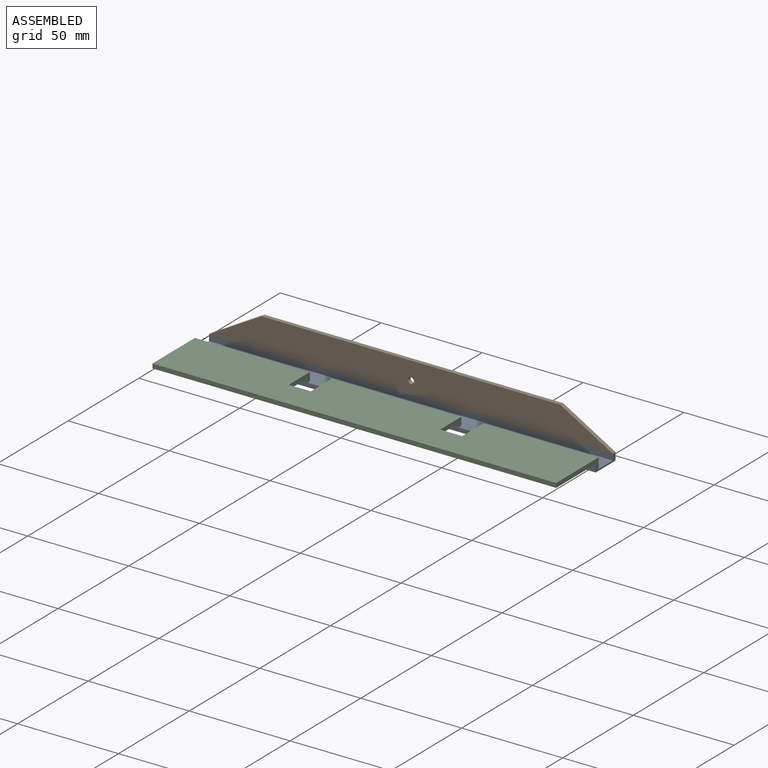
[diagram: assembled view]
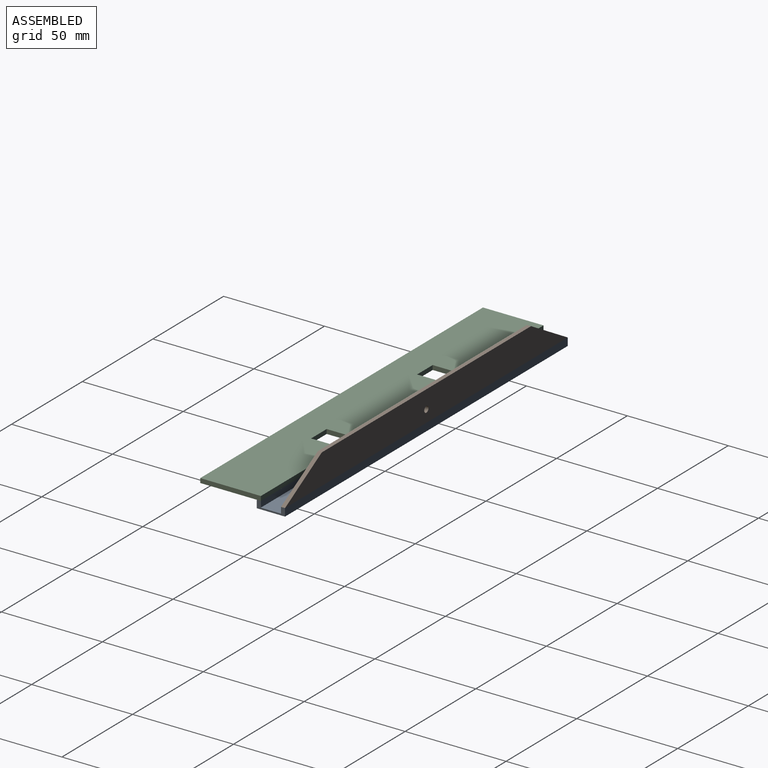
[diagram: assembled view, second angle]
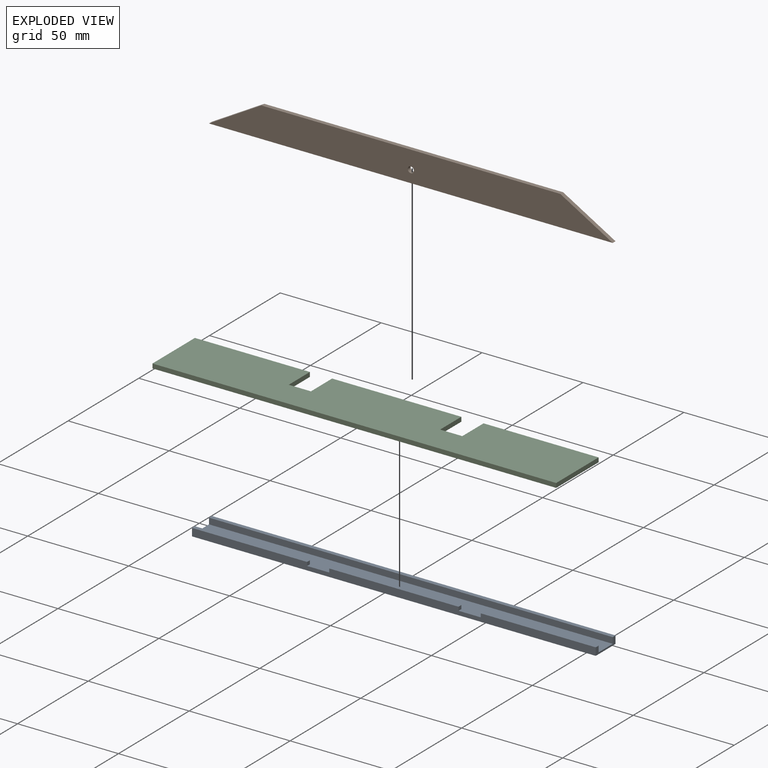
[diagram: exploded view]
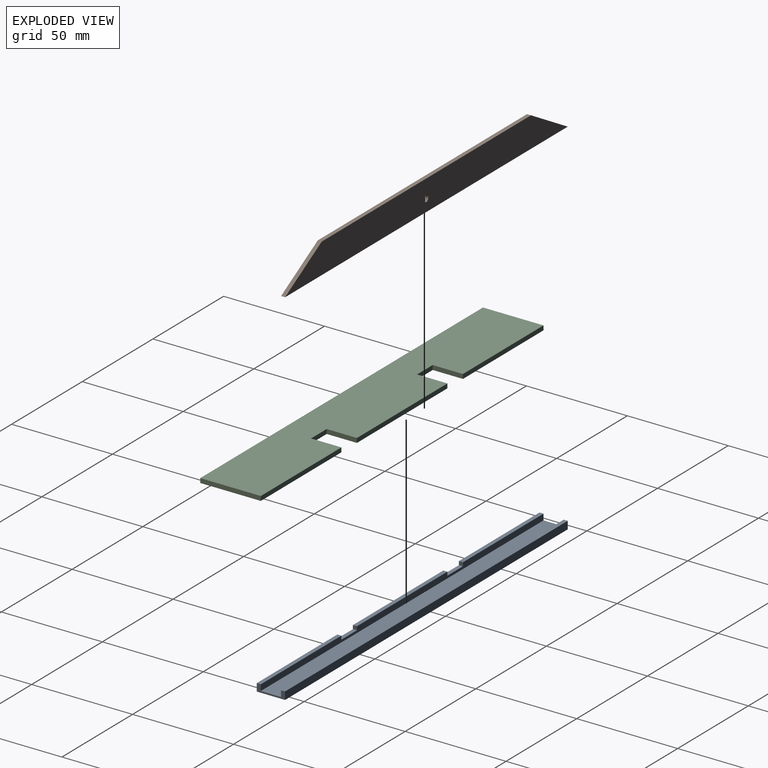
[diagram: exploded view, second angle]
ASSEMBLY  parts=3 mates=2
PART A: 18 faces, bbox 3.8x14x200 mm
  f0: plane 200x3.8mm, normal (0,-1,0), area 720.4mm2, adj f1,f2,f5,f6,f10,f11,f12,f13
  f1: plane 57x2mm, normal (1,0,0), area 114mm2, adj f0,f7,f10,f15
  f2: plane 64x2mm, normal (1,0,0), area 128mm2, adj f0,f7,f12,f16
  f3: plane 200x2mm, normal (1,0,0), area 400mm2, adj f4,f9,f10,f11
  f4: plane 200x3.8mm, normal (0,1,0), area 760mm2, adj f3,f5,f10,f11
  f5: plane 200x14mm, normal (-1,0,0), area 2800mm2, adj f0,f4,f10,f11
  f6: plane 57x2mm, normal (1,0,0), area 114mm2, adj f0,f7,f11,f13
  f7: plane 200x3mm, normal (0,1,0), area 560.4mm2, adj f1,f2,f6,f8,f10,f11,f12,f13
  f8: plane 200x10mm, normal (1,0,0), area 2000mm2, adj f7,f9,f10,f11
  f9: plane 200x3mm, normal (0,-1,0), area 600mm2, adj f3,f8,f10,f11
  f10: plane 14x3.8mm, normal (0,0,1), area 23.2mm2, adj f0,f1,f3,f4,f5,f7,f8,f9
  f11: plane 14x3.8mm, normal (0,0,-1), area 23.2mm2, adj f0,f3,f4,f5,f6,f7,f8,f9
  f12: plane 2x1.8mm, normal (0,0,-1), area 3.6mm2, adj f0,f2,f7,f14
  f13: plane 2x1.8mm, normal (0,0,1), area 3.6mm2, adj f0,f6,f7,f14
  f14: plane 11x2mm, normal (1,0,0), area 22mm2, adj f0,f7,f12,f13
  f15: plane 2x1.8mm, normal (0,0,-1), area 3.6mm2, adj f0,f1,f7,f17
  f16: plane 2x1.8mm, normal (0,0,1), area 3.6mm2, adj f0,f2,f7,f17
  f17: plane 11x2mm, normal (1,0,0), area 22mm2, adj f0,f7,f15,f16
PART B: 7 faces, bbox 15x2x200 mm
  f0: plane 200x15mm, normal (0,1,0), area 2603.2mm2, adj f2,f3,f4,f5,f6
  f1: plane 200x15mm, normal (0,-1,0), area 2603.2mm2, adj f2,f3,f4,f5,f6
  f2: plane 148.04x2mm, normal (1,0,0), area 296.1mm2, adj f0,f1,f5,f6
  f3: plane 200x2mm, normal (-1,0,0), area 400mm2, adj f0,f1,f5,f6
  f4: cylinder r=1.5mm len=3mm, axis (0,1,0), area 18.8mm2, adj f0,f1
  f5: plane 25.98x15mm, normal (0.87,0,-0.5), area 60mm2, adj f0,f1,f2,f3
  f6: plane 25.98x15mm, normal (0.87,0,0.5), area 60mm2, adj f0,f1,f2,f3
PART C: 14 faces, bbox 2.2x30x200 mm
  f0: plane 57x2.2mm, normal (0,1,0), area 125.4mm2, adj f2,f3,f6,f11
  f1: plane 64x2.2mm, normal (0,1,0), area 140.8mm2, adj f2,f3,f8,f12
  f2: plane 200x30mm, normal (1,0,0), area 5670mm2, adj f0,f1,f4,f5,f6,f7,f8,f9
  f3: plane 200x30mm, normal (-1,0,0), area 5670mm2, adj f0,f1,f4,f5,f6,f7,f8,f9
  f4: plane 30x2.2mm, normal (0,0,-1), area 66mm2, adj f2,f3,f5,f7
  f5: plane 57x2.2mm, normal (0,1,0), area 125.4mm2, adj f2,f3,f4,f9
  f6: plane 30x2.2mm, normal (0,0,1), area 66mm2, adj f0,f2,f3,f7
  f7: plane 200x2.2mm, normal (0,-1,0), area 440mm2, adj f2,f3,f4,f6
  f8: plane 15x2.2mm, normal (0,0,-1), area 33mm2, adj f1,f2,f3,f10
  f9: plane 15x2.2mm, normal (0,0,1), area 33mm2, adj f2,f3,f5,f10
  f10: plane 11x2.2mm, normal (0,1,0), area 24.2mm2, adj f2,f3,f8,f9
  f11: plane 15x2.2mm, normal (0,0,-1), area 33mm2, adj f0,f2,f3,f13
  f12: plane 15x2.2mm, normal (0,0,1), area 33mm2, adj f1,f2,f3,f13
  f13: plane 11x2.2mm, normal (0,1,0), area 24.2mm2, adj f2,f3,f11,f12
PLACE A rot(axis=(0,-1,0),90deg) t=(8.61,-10.44,65.2)mm
PLACE B rot(axis=(0,-1,0),90deg) t=(8.61,-10.44,65.2)mm
PLACE C rot(axis=(0,-1,0),90deg) t=(8.61,-10.44,65.2)mm
MATE fastened C.f3 <-> A.f1  axis (0,0,-1) through (-162.89,-15.44,65.2)mm
MATE fastened B.f3 <-> A.f3  axis (0,0,-1) through (-91.39,-4.44,65.2)mm
